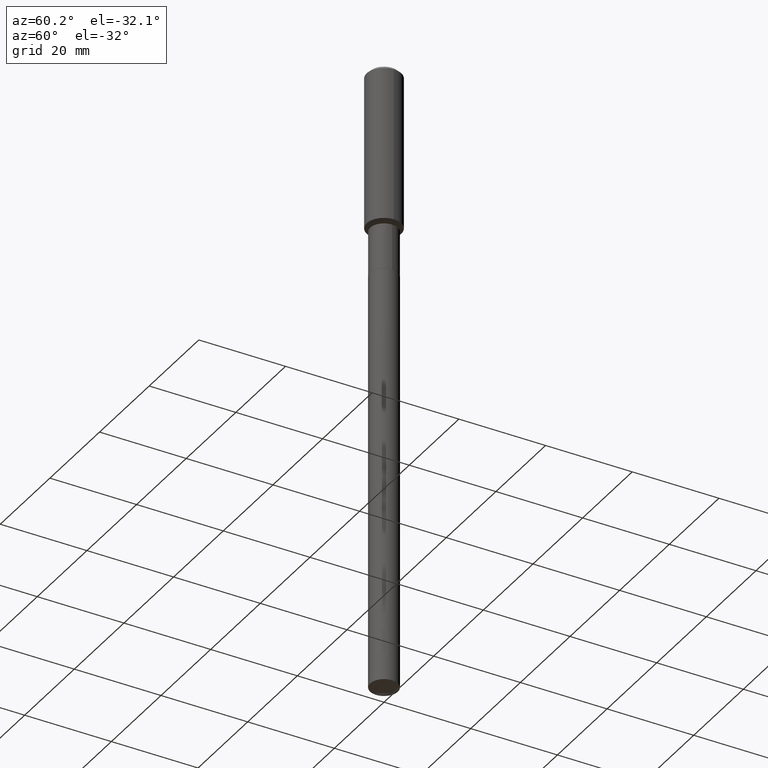
[diagram: clean part render]
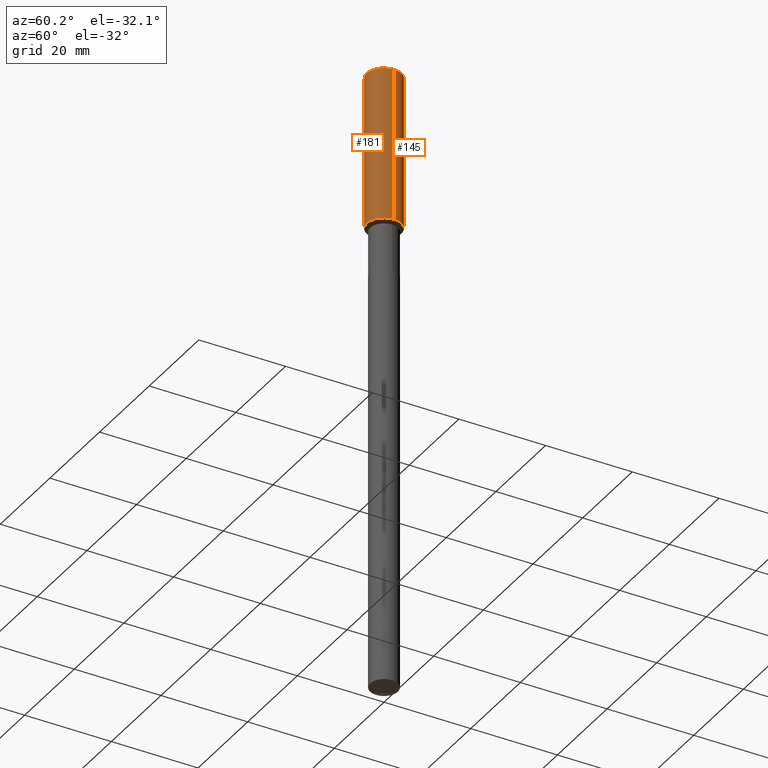
[diagram: same view with one multi-face feature highlighted, each face labeled with its STEP entity id]
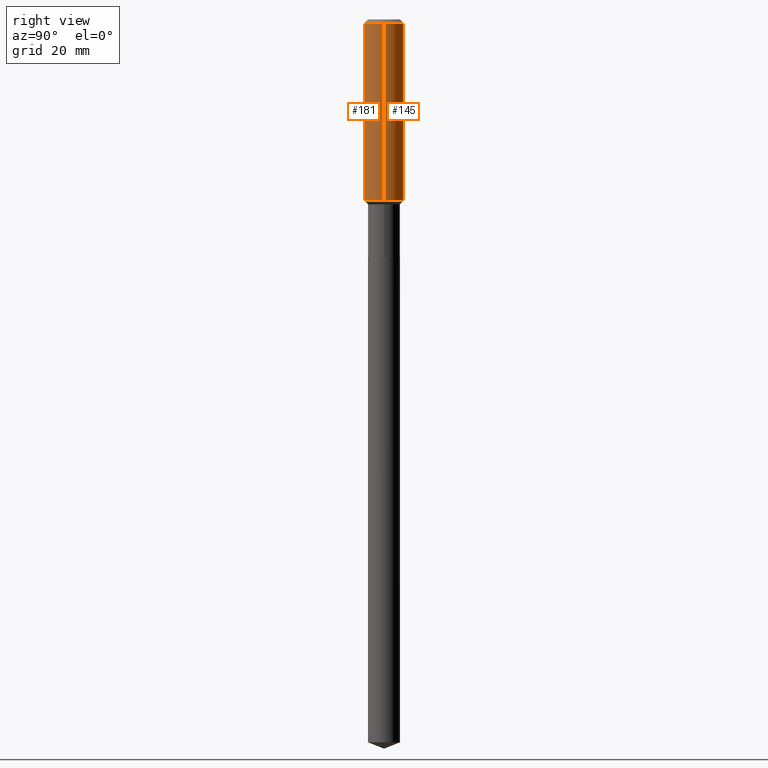
[diagram: same view with one multi-face feature highlighted, each face labeled with its STEP entity id]
A machine part, auxiliary view. The highlighted faces form ONE feature: a constant-radius fillet chain: 2 tangent blend faces with common blend radius 4.0005 mm. The faces share edges in the B-rep.
A second angle (right view) of the same feature is appended — it is thin or edge-on in the first view.
Their STEP definitions:
[1] entity #181 (Cylinder):
#7 = VERTEX_POINT ( 'NONE', #17 ) ;
#17 = CARTESIAN_POINT ( 'NONE',  ( 0.1575000000000001676, -6.081113047863103767E-15, -1.426700000000000079 ) ) ;
#36 = CARTESIAN_POINT ( 'NONE',  ( 0.000000000000000000, 0.000000000000000000, 0.000000000000000000 ) ) ;
#42 = EDGE_CURVE ( 'NONE', #157, #51, #56, .T. ) ;
#49 = EDGE_LOOP ( 'NONE', ( #317, #62, #394, #348 ) ) ;
#50 = EDGE_CURVE ( 'NONE', #7, #238, #283, .T. ) ;
#51 = VERTEX_POINT ( 'NONE', #406 ) ;
#52 = AXIS2_PLACEMENT_3D ( 'NONE', #375, #152, #263 ) ;
#56 = LINE ( 'NONE', #139, #83 ) ;
#62 = ORIENTED_EDGE ( 'NONE', *, *, #450, .T. ) ;
#74 = CARTESIAN_POINT ( 'NONE',  ( -0.1575000000000001676, -3.862191617305357106E-15, -1.426700000000000079 ) ) ;
#76 = DIRECTION ( 'NONE',  ( 1.000000000000000000, -6.982962677686267499E-15, 4.876176775795936353E-29 ) ) ;
#80 = DIRECTION ( 'NONE',  ( 1.000000000000000000, -6.982962677686265922E-15, 0.000000000000000000 ) ) ;
#83 = VECTOR ( 'NONE', #359, 39.37007874015748143 ) ;
#139 = CARTESIAN_POINT ( 'NONE',  ( -0.1575000000000000844, 1.119104808822158392E-15, -7.747322767151481189E-30 ) ) ;
#152 = DIRECTION ( 'NONE',  ( -2.445468806185136597E-29, 3.491481338843145583E-15, 1.000000000000000000 ) ) ;
#157 = VERTEX_POINT ( 'NONE', #74 ) ;
#163 = AXIS2_PLACEMENT_3D ( 'NONE', #338, #380, #80 ) ;
#181 = ADVANCED_FACE ( 'NONE', ( #420 ), #381, .T. ) ;
#204 = CIRCLE ( 'NONE', #52, 0.1575000000000001676 ) ;
#219 = EDGE_CURVE ( 'NONE', #51, #238, #222, .T. ) ;
#221 = DIRECTION ( 'NONE',  ( -2.445468806185136877E-29, 3.491481338843145188E-15, 1.000000000000000000 ) ) ;
#222 = CIRCLE ( 'NONE', #163, 0.1575000000000000011 ) ;
#238 = VERTEX_POINT ( 'NONE', #365 ) ;
#263 = DIRECTION ( 'NONE',  ( 1.000000000000000000, -6.982962677686267499E-15, 0.000000000000000000 ) ) ;
#283 = LINE ( 'NONE', #474, #322 ) ;
#292 = DIRECTION ( 'NONE',  ( -2.445468806185136597E-29, 3.491481338843145583E-15, 1.000000000000000000 ) ) ;
#317 = ORIENTED_EDGE ( 'NONE', *, *, #42, .F. ) ;
#322 = VECTOR ( 'NONE', #221, 39.37007874015748143 ) ;
#338 = CARTESIAN_POINT ( 'NONE',  ( 7.703226739483228723E-31, -1.099816621735597661E-16, -0.03150000000000019451 ) ) ;
#348 = ORIENTED_EDGE ( 'NONE', *, *, #219, .F. ) ;
#359 = DIRECTION ( 'NONE',  ( -2.445468806185136877E-29, 3.491481338843145188E-15, 1.000000000000000000 ) ) ;
#365 = CARTESIAN_POINT ( 'NONE',  ( 0.1575000000000000011, -1.209798283909146741E-15, -0.03150000000000019451 ) ) ;
#375 = CARTESIAN_POINT ( 'NONE',  ( 3.488950345784334839E-29, -4.981296426127515498E-15, -1.426700000000000079 ) ) ;
#380 = DIRECTION ( 'NONE',  ( -2.445468806185136597E-29, 3.491481338843145583E-15, 1.000000000000000000 ) ) ;
#381 = CYLINDRICAL_SURFACE ( 'NONE', #462, 0.1575000000000000844 ) ;
#394 = ORIENTED_EDGE ( 'NONE', *, *, #50, .T. ) ;
#406 = CARTESIAN_POINT ( 'NONE',  ( -0.1575000000000000011, -1.426534235328379283E-15, -0.03150000000000019451 ) ) ;
#420 = FACE_OUTER_BOUND ( 'NONE', #49, .T. ) ;
#450 = EDGE_CURVE ( 'NONE', #157, #7, #204, .T. ) ;
#462 = AXIS2_PLACEMENT_3D ( 'NONE', #36, #292, #76 ) ;
#474 = CARTESIAN_POINT ( 'NONE',  ( 0.1575000000000000844, -1.099816621735587677E-15, 7.679978421878603638E-30 ) ) ;
[2] entity #145 (Cylinder):
#3 = EDGE_CURVE ( 'NONE', #7, #157, #133, .T. ) ;
#7 = VERTEX_POINT ( 'NONE', #17 ) ;
#12 = ORIENTED_EDGE ( 'NONE', *, *, #42, .T. ) ;
#17 = CARTESIAN_POINT ( 'NONE',  ( 0.1575000000000001676, -6.081113047863103767E-15, -1.426700000000000079 ) ) ;
#18 = CIRCLE ( 'NONE', #211, 0.1575000000000000011 ) ;
#42 = EDGE_CURVE ( 'NONE', #157, #51, #56, .T. ) ;
#50 = EDGE_CURVE ( 'NONE', #7, #238, #283, .T. ) ;
#51 = VERTEX_POINT ( 'NONE', #406 ) ;
#56 = LINE ( 'NONE', #139, #83 ) ;
#74 = CARTESIAN_POINT ( 'NONE',  ( -0.1575000000000001676, -3.862191617305357106E-15, -1.426700000000000079 ) ) ;
#81 = EDGE_LOOP ( 'NONE', ( #387, #12, #167, #326 ) ) ;
#83 = VECTOR ( 'NONE', #359, 39.37007874015748143 ) ;
#133 = CIRCLE ( 'NONE', #296, 0.1575000000000001676 ) ;
#139 = CARTESIAN_POINT ( 'NONE',  ( -0.1575000000000000844, 1.119104808822158392E-15, -7.747322767151481189E-30 ) ) ;
#145 = ADVANCED_FACE ( 'NONE', ( #185 ), #336, .T. ) ;
#146 = DIRECTION ( 'NONE',  ( 1.000000000000000000, -6.982962677686267499E-15, 4.876176775795936353E-29 ) ) ;
#157 = VERTEX_POINT ( 'NONE', #74 ) ;
#167 = ORIENTED_EDGE ( 'NONE', *, *, #278, .F. ) ;
#185 = FACE_OUTER_BOUND ( 'NONE', #81, .T. ) ;
#207 = CARTESIAN_POINT ( 'NONE',  ( 7.703226739483228723E-31, -1.099816621735597661E-16, -0.03150000000000019451 ) ) ;
#209 = CARTESIAN_POINT ( 'NONE',  ( 3.488950345784334839E-29, -4.981296426127515498E-15, -1.426700000000000079 ) ) ;
#211 = AXIS2_PLACEMENT_3D ( 'NONE', #207, #489, #379 ) ;
#214 = DIRECTION ( 'NONE',  ( -2.445468806185136597E-29, 3.491481338843145583E-15, 1.000000000000000000 ) ) ;
#221 = DIRECTION ( 'NONE',  ( -2.445468806185136877E-29, 3.491481338843145188E-15, 1.000000000000000000 ) ) ;
#238 = VERTEX_POINT ( 'NONE', #365 ) ;
#278 = EDGE_CURVE ( 'NONE', #238, #51, #18, .T. ) ;
#283 = LINE ( 'NONE', #474, #322 ) ;
#295 = DIRECTION ( 'NONE',  ( -2.445468806185136597E-29, 3.491481338843145583E-15, 1.000000000000000000 ) ) ;
#296 = AXIS2_PLACEMENT_3D ( 'NONE', #209, #214, #407 ) ;
#322 = VECTOR ( 'NONE', #221, 39.37007874015748143 ) ;
#326 = ORIENTED_EDGE ( 'NONE', *, *, #50, .F. ) ;
#336 = CYLINDRICAL_SURFACE ( 'NONE', #403, 0.1575000000000000844 ) ;
#359 = DIRECTION ( 'NONE',  ( -2.445468806185136877E-29, 3.491481338843145188E-15, 1.000000000000000000 ) ) ;
#365 = CARTESIAN_POINT ( 'NONE',  ( 0.1575000000000000011, -1.209798283909146741E-15, -0.03150000000000019451 ) ) ;
#374 = CARTESIAN_POINT ( 'NONE',  ( 0.000000000000000000, 0.000000000000000000, 0.000000000000000000 ) ) ;
#379 = DIRECTION ( 'NONE',  ( 1.000000000000000000, -6.982962677686265922E-15, 0.000000000000000000 ) ) ;
#387 = ORIENTED_EDGE ( 'NONE', *, *, #3, .T. ) ;
#403 = AXIS2_PLACEMENT_3D ( 'NONE', #374, #295, #146 ) ;
#406 = CARTESIAN_POINT ( 'NONE',  ( -0.1575000000000000011, -1.426534235328379283E-15, -0.03150000000000019451 ) ) ;
#407 = DIRECTION ( 'NONE',  ( 1.000000000000000000, -6.982962677686267499E-15, 0.000000000000000000 ) ) ;
#474 = CARTESIAN_POINT ( 'NONE',  ( 0.1575000000000000844, -1.099816621735587677E-15, 7.679978421878603638E-30 ) ) ;
#489 = DIRECTION ( 'NONE',  ( -2.445468806185136597E-29, 3.491481338843145583E-15, 1.000000000000000000 ) ) ;